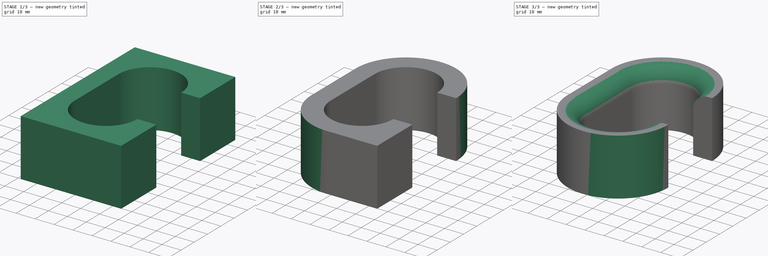
[diagram: build sequence overview — one tinted view per stage of 3, left to right]
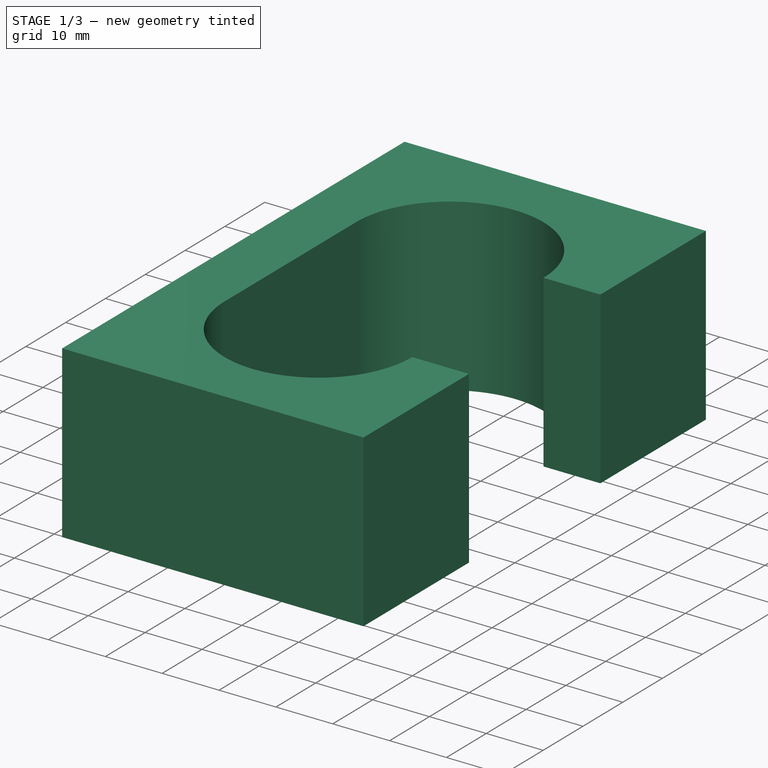
[diagram: stage 1 of 3 — iso view after this stage's code; geometry added in this stage tinted green]
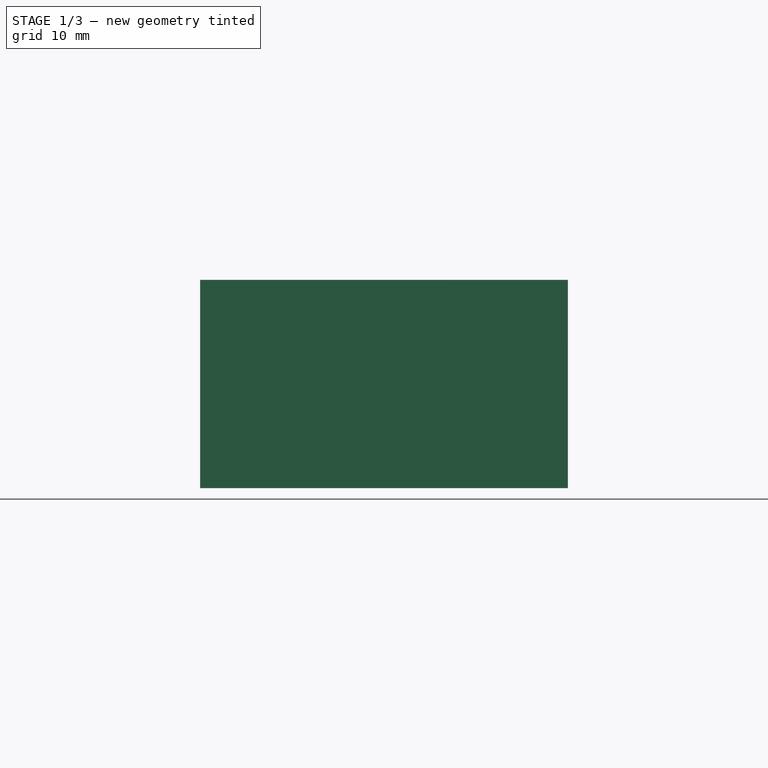
[diagram: stage 1 of 3 — front view after this stage's code; geometry added in this stage tinted green]
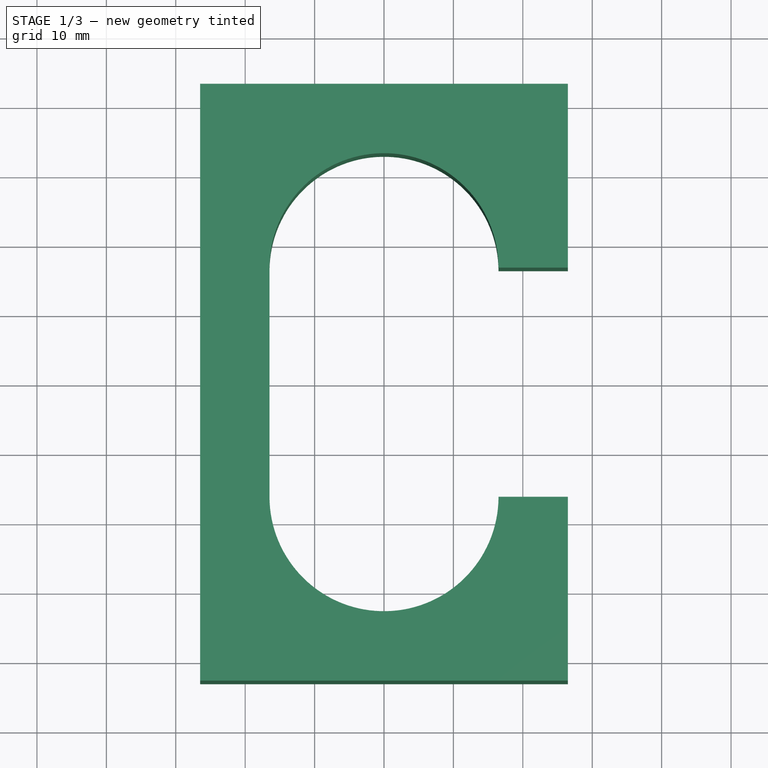
[diagram: stage 1 of 3 — top view after this stage's code; geometry added in this stage tinted green]
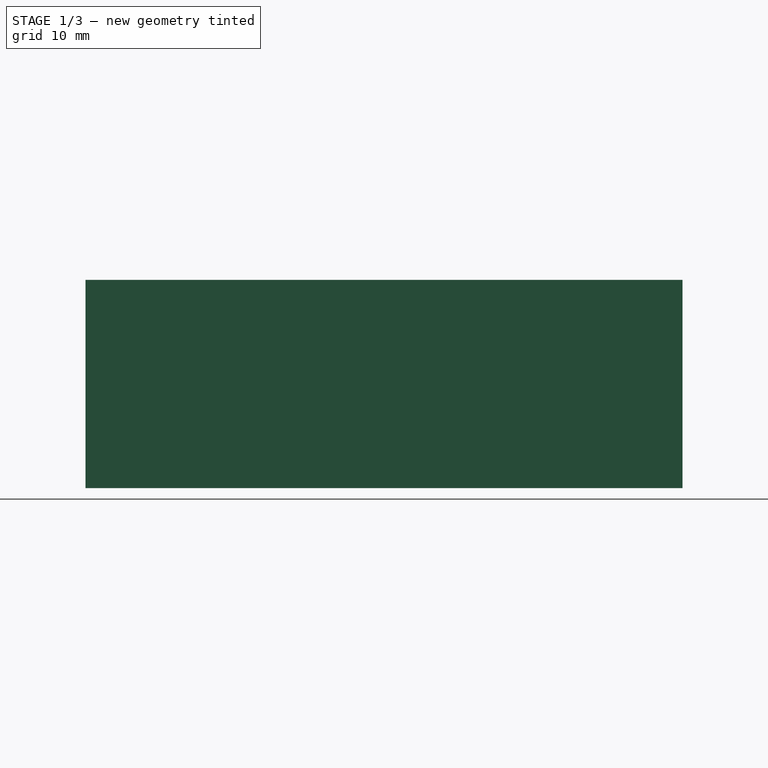
[diagram: stage 1 of 3 — right view after this stage's code; geometry added in this stage tinted green]
FCSTD DOCUMENT  (FreeCAD 0.19R24291 (Git))
Label: decathlon_station_900_hooks
License: All rights reserved
LicenseURL: http://en.wikipedia.org/wiki/All_rights_reserved
objects: Sketcher::SketchObject×6, PartDesign::Pocket×5, Spreadsheet::Sheet×1, PartDesign::Pad×1, PartDesign::Fillet×1, PartDesign::Body×1
note: 21 computed .brp shape members not serialized (recipe doc carries the construction recipe); baked Part::Feature solids carry a one-line shape summary decoded from their .brp

FEATURE [Sketcher::SketchObject] Sketch
  FullyConstrained = true
  MapMode = 5
  Support = -> [XY_Plane]
  expr: Constraints[10] = <<Spreadsheet>>.hole_size * 2 + <<Spreadsheet>>.wall_thickness * 2
  expr: Constraints[9] = <<Spreadsheet>>.wall_thickness * 2 + <<Spreadsheet>>.hole_size
  sketch-geometry (4):
    g0: LineSegment StartX=-26.5 StartY=43 StartZ=0 EndX=26.5 EndY=43 EndZ=0
    g1: LineSegment StartX=26.5 StartY=43 StartZ=0 EndX=26.5 EndY=-43 EndZ=0
    g2: LineSegment StartX=26.5 StartY=-43 StartZ=0 EndX=-26.5 EndY=-43 EndZ=0
    g3: LineSegment StartX=-26.5 StartY=-43 StartZ=0 EndX=-26.5 EndY=43 EndZ=0
  constraints (11):
    c: Coincident(g0,g1)
    c: Coincident(g1,g2)
    c: Coincident(g2,g3)
    c: Coincident(g3,g0)
    c: Horizontal(g0)
    c: Horizontal(g2)
    c: Vertical(g1)
    c: Vertical(g3)
    c: Symmetric(g0,g2,g-1)
    c: Distance(g0) = 53
    c: Distance(g1) = 86
FEATURE [Spreadsheet::Sheet] Spreadsheet
  cells = A1=height; B1=wall thickness; C1=hole size; A2(height)=30; B2(wall_thickness)=10; C2(hole_size)=33
FEATURE [PartDesign::Pad] Pad
  Direction = (1,1,1)
  Length = 30
  Length2 = 100
  Profile = -> Sketch
  Type = 0
  expr: Length = <<Spreadsheet>>.height
FEATURE [Sketcher::SketchObject] Sketch001
  ExternalGeometry = -> [Pad]
  FullyConstrained = true
  MapMode = 5
  Placement = pos=(0,0,30) rot=(0,0,1;0rad)
  Support = -> [Pad]
  expr: Constraints[4] = <<Spreadsheet>>.hole_size
  sketch-geometry (11):
    g0: Circle CenterX=0 CenterY=16.5 CenterZ=0 NormalX=0 NormalY=0 NormalZ=1 AngleXU=0 Radius=16.5
    g1: Circle CenterX=0 CenterY=-16.5 CenterZ=0 NormalX=0 NormalY=0 NormalZ=1 AngleXU=0 Radius=16.5
    g2: LineSegment StartX=-16.5 StartY=16.5 StartZ=0 EndX=16.5 EndY=16.5 EndZ=0
    g3: LineSegment StartX=16.5 StartY=-16.5 StartZ=0 EndX=-16.5 EndY=-16.5 EndZ=0
    g4: LineSegment StartX=-16.5 StartY=-16.5 StartZ=0 EndX=-16.5 EndY=16.5 EndZ=0
    g5: ArcOfCircle CenterX=0 CenterY=16.5 CenterZ=0 NormalX=0 NormalY=0 NormalZ=1 AngleXU=0 Radius=16.5 StartAngle=0 EndAngle=3.14159
    g6: ArcOfCircle CenterX=0 CenterY=-16.5 CenterZ=0 NormalX=0 NormalY=0 NormalZ=1 AngleXU=0 Radius=16.5 StartAngle=3.14159 EndAngle=6.28319
    g7: LineSegment StartX=-16.5 StartY=-16.5 StartZ=0 EndX=-16.5 EndY=16.5 EndZ=0
    g8: LineSegment StartX=16.5 StartY=16.5 StartZ=0 EndX=26.5 EndY=16.5 EndZ=0
    g9: LineSegment StartX=26.5 StartY=-16.5 StartZ=0 EndX=16.5 EndY=-16.5 EndZ=0
    g10: LineSegment StartX=26.5 StartY=16.5 StartZ=0 EndX=26.5 EndY=-16.5 EndZ=0
  constraints (29):
    c: PointOnObject(g0,g-2)
    c: Equal(g1,g0)
    c: Symmetric(g0,g1,g-1)
    c: PointOnObject(g-1,g0)
    c: Diameter(g0) = 33
    c: Coincident(g3,g4)
    c: Coincident(g4,g2)
    c: Horizontal(g2)
    c: Horizontal(g3)
    c: PointOnObject(g0,g2)
    c: PointOnObject(g2,g0)
    c: Coincident(g5,g0)
    c: Coincident(g5,g2)
    c: Coincident(g5,g2)
    c: Coincident(g6,g1)
    c: Coincident(g6,g3)
    c: Coincident(g7,g6)
    c: Coincident(g7,g5)
    c: PointOnObject(g6,g1)
    c: Coincident(g8,g5)
    c: PointOnObject(g8,g-3)
    c: Horizontal(g8)
    c: Coincident(g9,g6)
    c: Horizontal(g9)
    c: Coincident(g6,g3)
    c: Vertical(g7)
    c: Coincident(g10,g8)
    c: Coincident(g10,g9)
    c: Vertical(g10)
FEATURE [PartDesign::Pocket] Pocket
  BaseFeature = -> Pad
  Length = 30
  Length2 = 100
  Profile = -> Sketch001
  Type = 0
  expr: Length = <<Spreadsheet>>.height
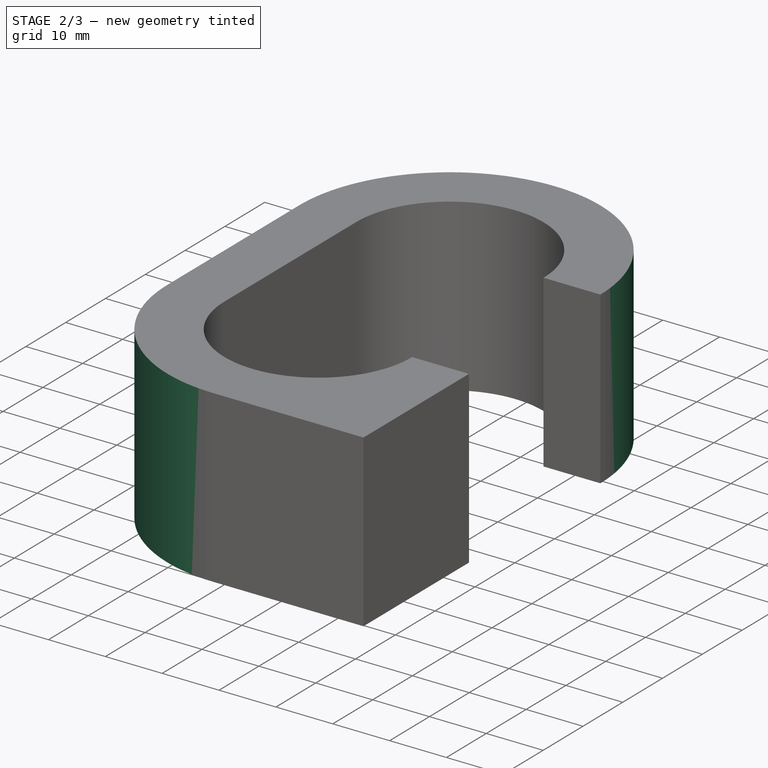
[diagram: stage 2 of 3 — iso view after this stage's code; geometry added in this stage tinted green]
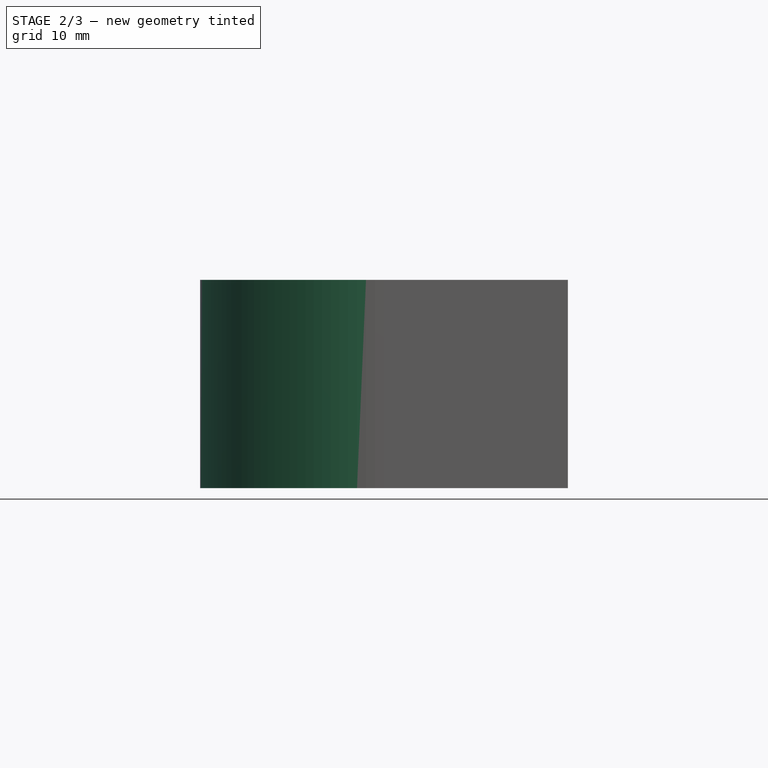
[diagram: stage 2 of 3 — front view after this stage's code; geometry added in this stage tinted green]
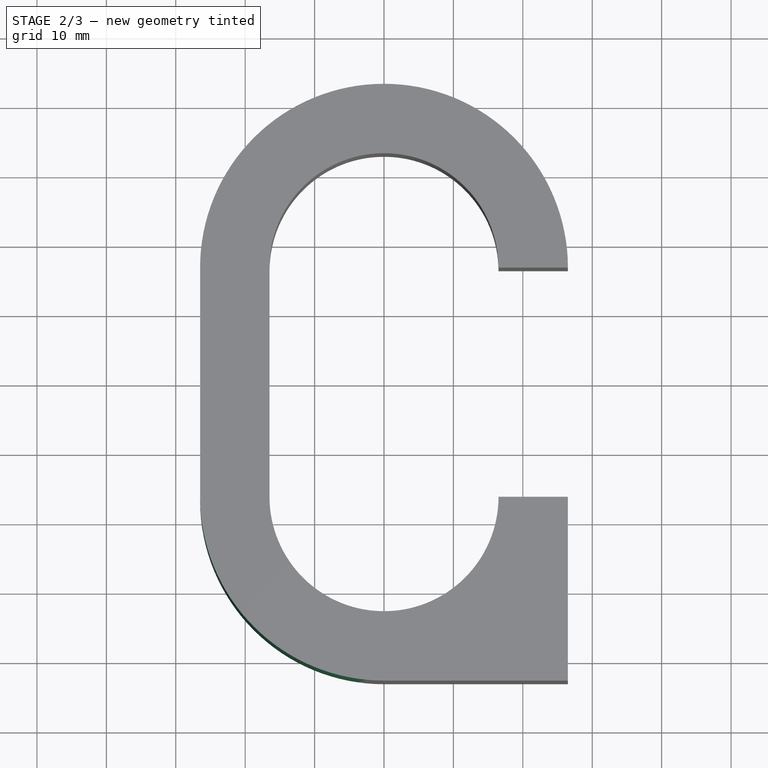
[diagram: stage 2 of 3 — top view after this stage's code; geometry added in this stage tinted green]
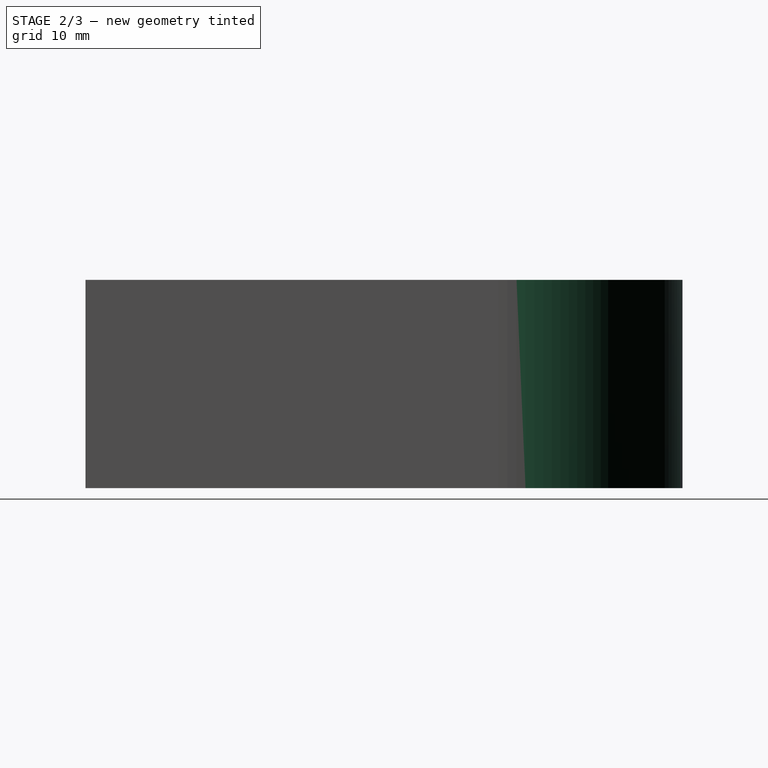
[diagram: stage 2 of 3 — right view after this stage's code; geometry added in this stage tinted green]
FEATURE [Sketcher::SketchObject] Sketch002
  ExternalGeometry = -> [Pocket]
  FullyConstrained = true
  MapMode = 5
  Placement = pos=(0,0,30) rot=(0,0,1;0rad)
  Support = -> [Pocket]
  sketch-geometry (3):
    g0: ArcOfCircle CenterX=0 CenterY=16.5 CenterZ=0 NormalX=0 NormalY=0 NormalZ=1 AngleXU=0 Radius=26.5 StartAngle=1.5708 EndAngle=3.14159
    g1: LineSegment StartX=-26.5 StartY=16.5 StartZ=0 EndX=-26.5 EndY=43 EndZ=0
    g2: LineSegment StartX=-26.5 StartY=43 StartZ=0 EndX=0 EndY=43 EndZ=0
  constraints (8):
    c: Coincident(g0,g-3)
    c: PointOnObject(g0,g-4)
    c: Horizontal(g0,g-3)
    c: Coincident(g0,g1)
    c: Coincident(g1,g2)
    c: Coincident(g2,g0)
    c: Coincident(g-4,g1)
    c: Vertical(g0,g0)
FEATURE [PartDesign::Pocket] Pocket001
  BaseFeature = -> Pocket
  Length = 30
  Length2 = 100
  Profile = -> Sketch002
  Type = 0
  expr: Length = <<Spreadsheet>>.height
FEATURE [Sketcher::SketchObject] Sketch003
  ExternalGeometry = -> [Pocket001]
  FullyConstrained = true
  MapMode = 5
  Placement = pos=(0,0,30) rot=(0,0,1;0rad)
  Support = -> [Pocket001]
  sketch-geometry (3):
    g0: ArcOfCircle CenterX=0 CenterY=16.5 CenterZ=0 NormalX=0 NormalY=0 NormalZ=1 AngleXU=0 Radius=26.5 StartAngle=0 EndAngle=1.5708
    g1: LineSegment StartX=0 StartY=43 StartZ=0 EndX=26.5 EndY=43 EndZ=0
    g2: LineSegment StartX=26.5 StartY=16.5 StartZ=0 EndX=26.5 EndY=43 EndZ=0
  constraints (8):
    c: Coincident(g0,g-3)
    c: Vertical(g0,g0)
    c: Horizontal(g0,g0)
    c: Horizontal(g0,g-4)
    c: Coincident(g1,g0)
    c: Coincident(g1,g-4)
    c: Coincident(g2,g0)
    c: Coincident(g2,g1)
FEATURE [PartDesign::Pocket] Pocket002
  BaseFeature = -> Pocket001
  Length = 30
  Length2 = 100
  Profile = -> Sketch003
  Type = 0
  expr: Length = <<Spreadsheet>>.height
FEATURE [Sketcher::SketchObject] Sketch004
  ExternalGeometry = -> [Pocket002]
  FullyConstrained = true
  MapMode = 5
  Placement = pos=(0,0,30) rot=(0,0,1;0rad)
  Support = -> [Pocket002]
  sketch-geometry (3):
    g0: ArcOfCircle CenterX=0 CenterY=-16.5 CenterZ=0 NormalX=0 NormalY=0 NormalZ=1 AngleXU=0 Radius=26.5 StartAngle=3.14159 EndAngle=4.71239
    g1: LineSegment StartX=-26.5 StartY=-16.5 StartZ=0 EndX=-26.5 EndY=-43 EndZ=0
    g2: LineSegment StartX=-3.87635e-05 StartY=-43 StartZ=0 EndX=-26.5 EndY=-43 EndZ=0
  constraints (8):
    c: Coincident(g0,g-3)
    c: Horizontal(g0,g0)
    c: Coincident(g0,g1)
    c: Coincident(g1,g-4)
    c: Vertical(g0,g1)
    c: Horizontal(g0,g1)
    c: Coincident(g2,g1)
    c: Coincident(g2,g0)
FEATURE [PartDesign::Pocket] Pocket003
  BaseFeature = -> Pocket002
  Length = 30
  Length2 = 100
  Profile = -> Sketch004
  Type = 0
  expr: Length = <<Spreadsheet>>.height
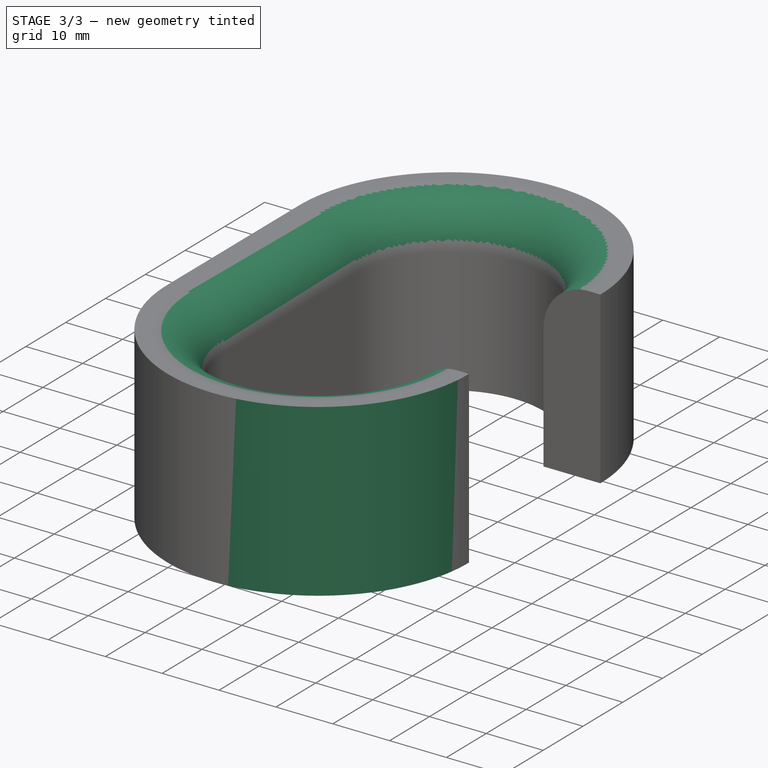
[diagram: stage 3 of 3 — iso view after this stage's code; geometry added in this stage tinted green]
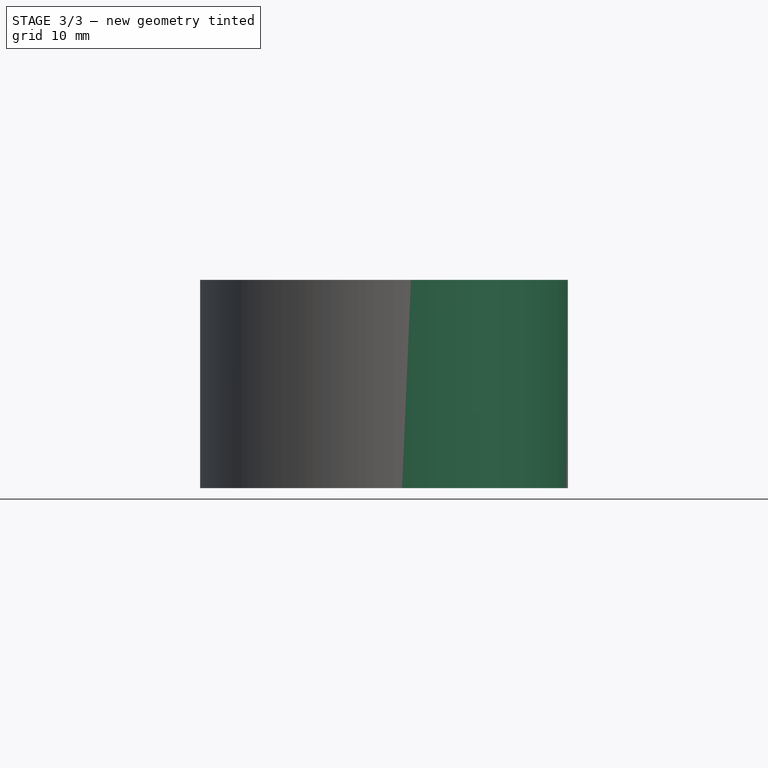
[diagram: stage 3 of 3 — front view after this stage's code; geometry added in this stage tinted green]
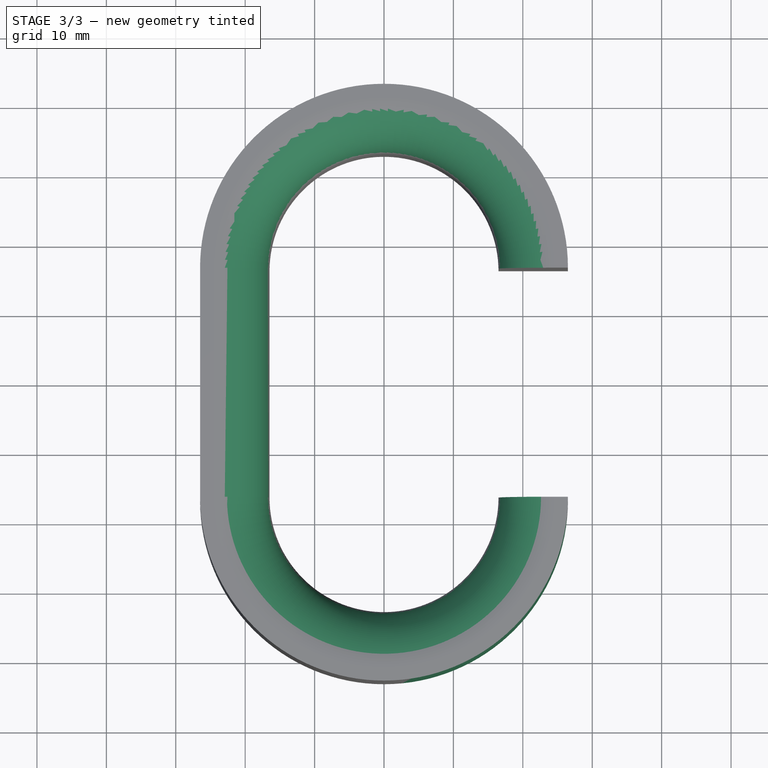
[diagram: stage 3 of 3 — top view after this stage's code; geometry added in this stage tinted green]
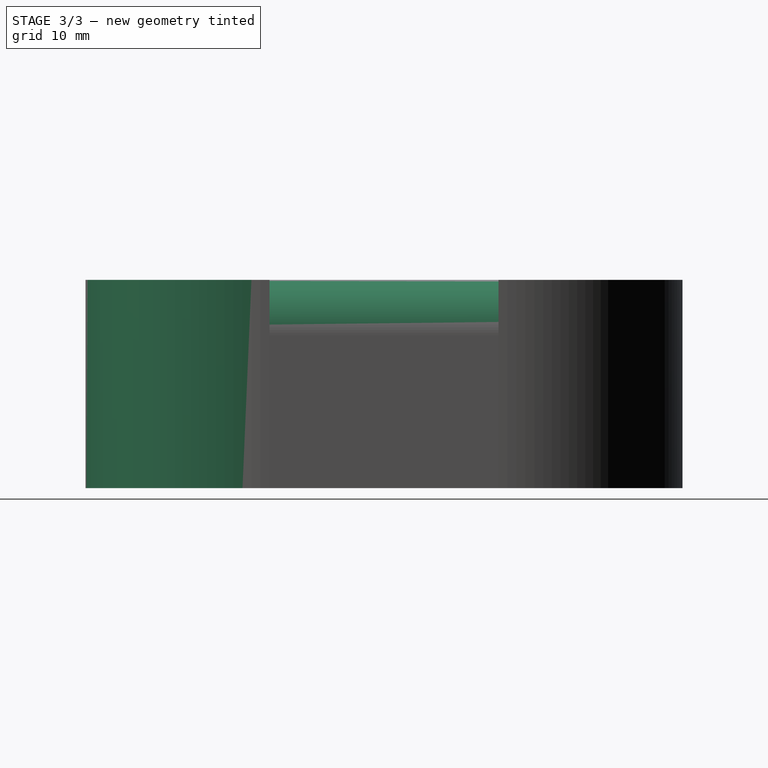
[diagram: stage 3 of 3 — right view after this stage's code; geometry added in this stage tinted green]
FEATURE [Sketcher::SketchObject] Sketch005
  ExternalGeometry = -> [Pocket003]
  FullyConstrained = true
  MapMode = 5
  Placement = pos=(0,0,30) rot=(0,0,1;0rad)
  Support = -> [Pocket003]
  sketch-geometry (3):
    g0: ArcOfCircle CenterX=0 CenterY=-16.5 CenterZ=0 NormalX=0 NormalY=0 NormalZ=1 AngleXU=0 Radius=26.5 StartAngle=4.71239 EndAngle=6.28319
    g1: LineSegment StartX=26.5 StartY=-16.5 StartZ=0 EndX=26.5 EndY=-43 EndZ=0
    g2: LineSegment StartX=26.5 StartY=-43 StartZ=0 EndX=3.87602e-05 EndY=-43 EndZ=0
  constraints (8):
    c: Coincident(g0,g-4)
    c: Horizontal(g0,g-3)
    c: Vertical(g0,g-3)
    c: Horizontal(g0,g0)
    c: Coincident(g1,g2)
    c: Coincident(g2,g0)
    c: Coincident(g1,g0)
    c: Coincident(g1,g-3)
FEATURE [PartDesign::Pocket] Pocket004
  BaseFeature = -> Pocket003
  Length = 30
  Length2 = 100
  Profile = -> Sketch005
  Type = 0
  expr: Length = <<Spreadsheet>>.height
FEATURE [PartDesign::Fillet] Fillet
  Base = -> Pocket004 [Edge13]
  BaseFeature = -> Pocket004
  Radius = 8
  SupportTransform = false
  expr: Radius = <<Spreadsheet>>.wall_thickness - 2
FEATURE [PartDesign::Body] Body
  Group = -> [Sketch,Pad,Sketch001,Pocket,Sketch002,Pocket001,Sketch003,Pocket002,Sketch004,Pocket003,Sketch005,Pocket004,Fillet]
  Origin = -> Origin
  Tip = -> Fillet
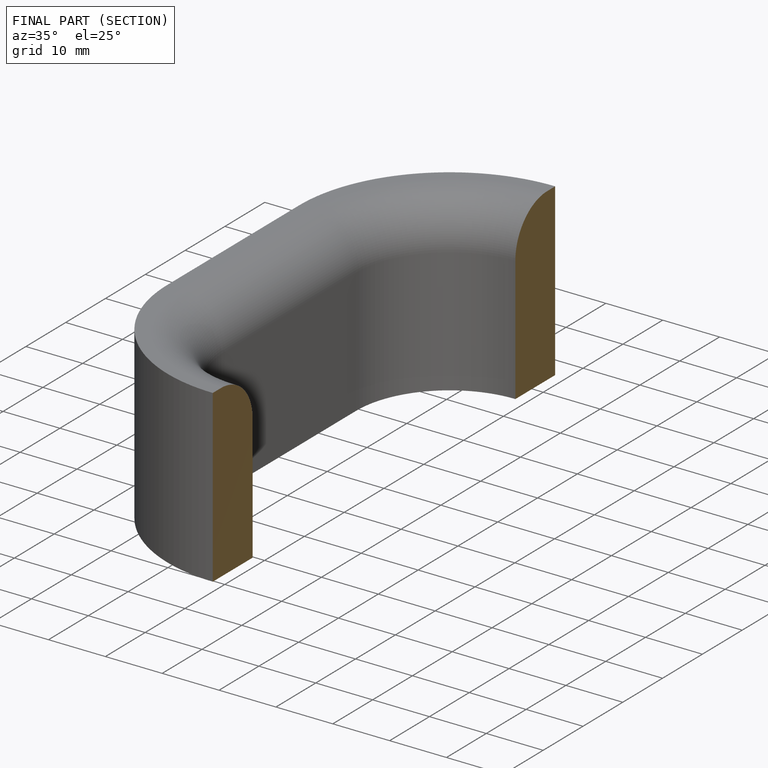
[diagram: finished part — half-section view (interior)]
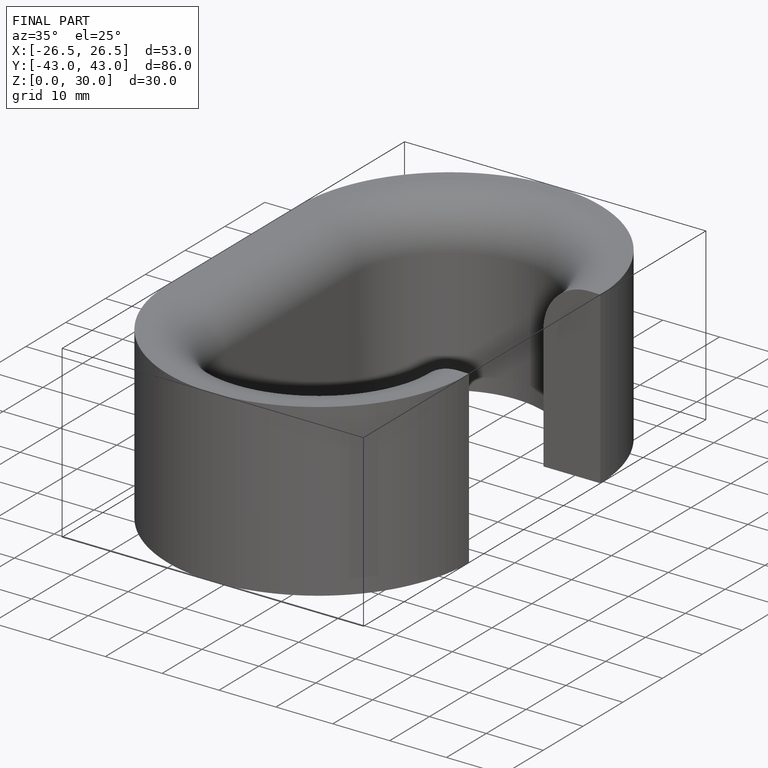
[diagram: finished part — iso view with bounding-box wireframe]
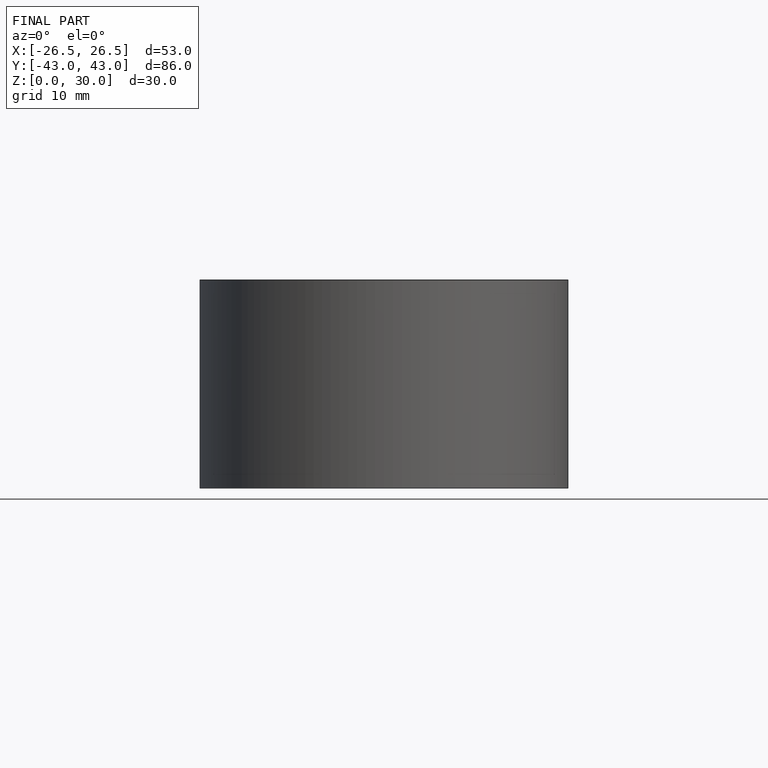
[diagram: finished part — front view with bounding-box wireframe]
